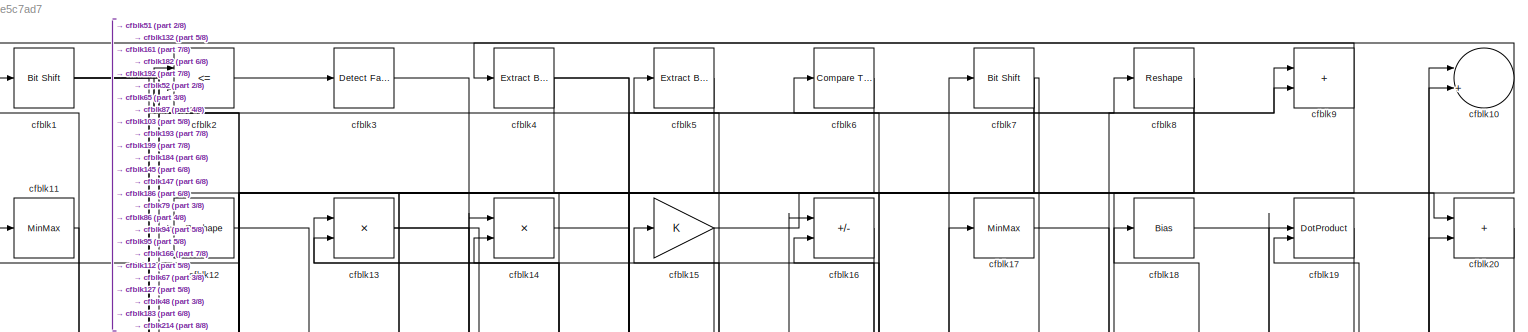
[diagram: root canvas - part 1/8, full width, top band]
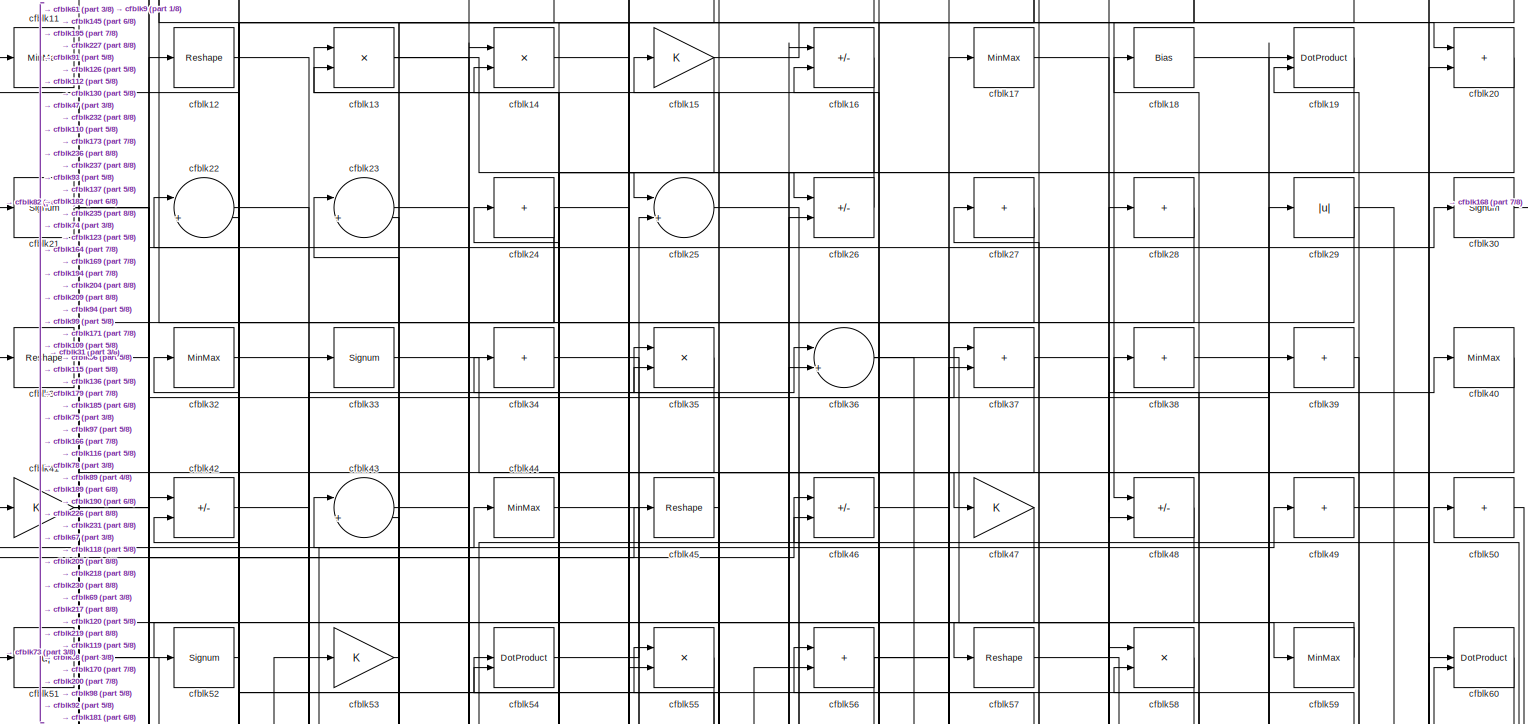
[diagram: root canvas - part 2/8, full width, top band]
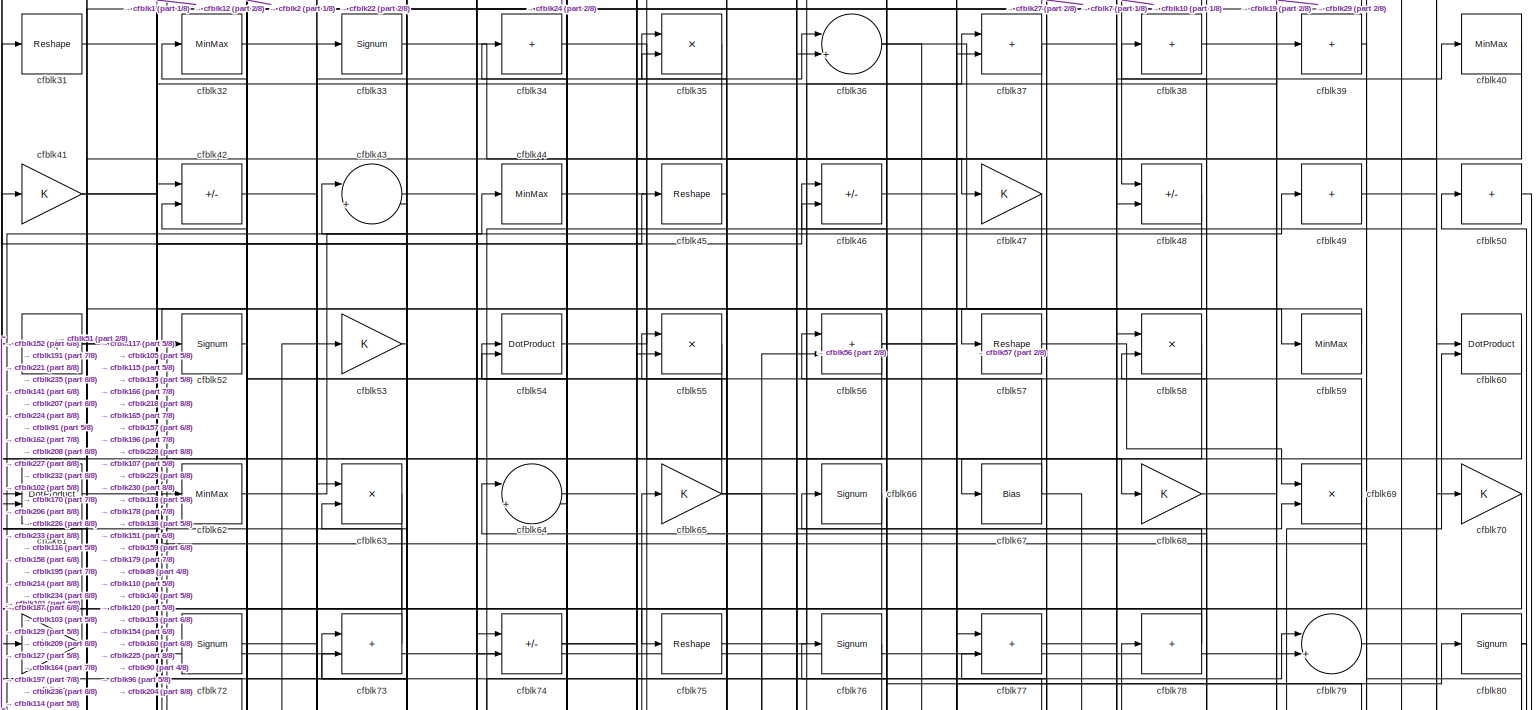
[diagram: root canvas - part 3/8, full width, top band]
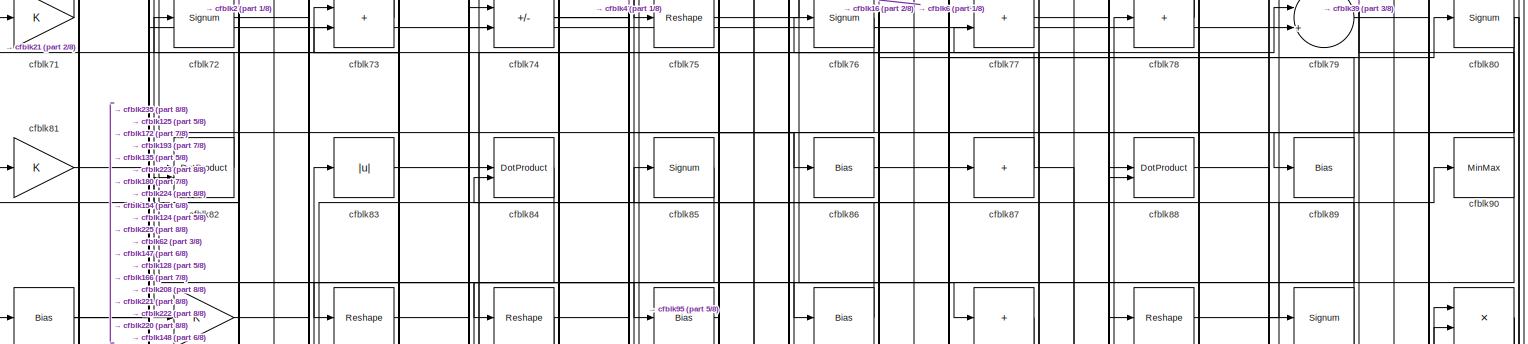
[diagram: root canvas - part 4/8, full width, middle band]
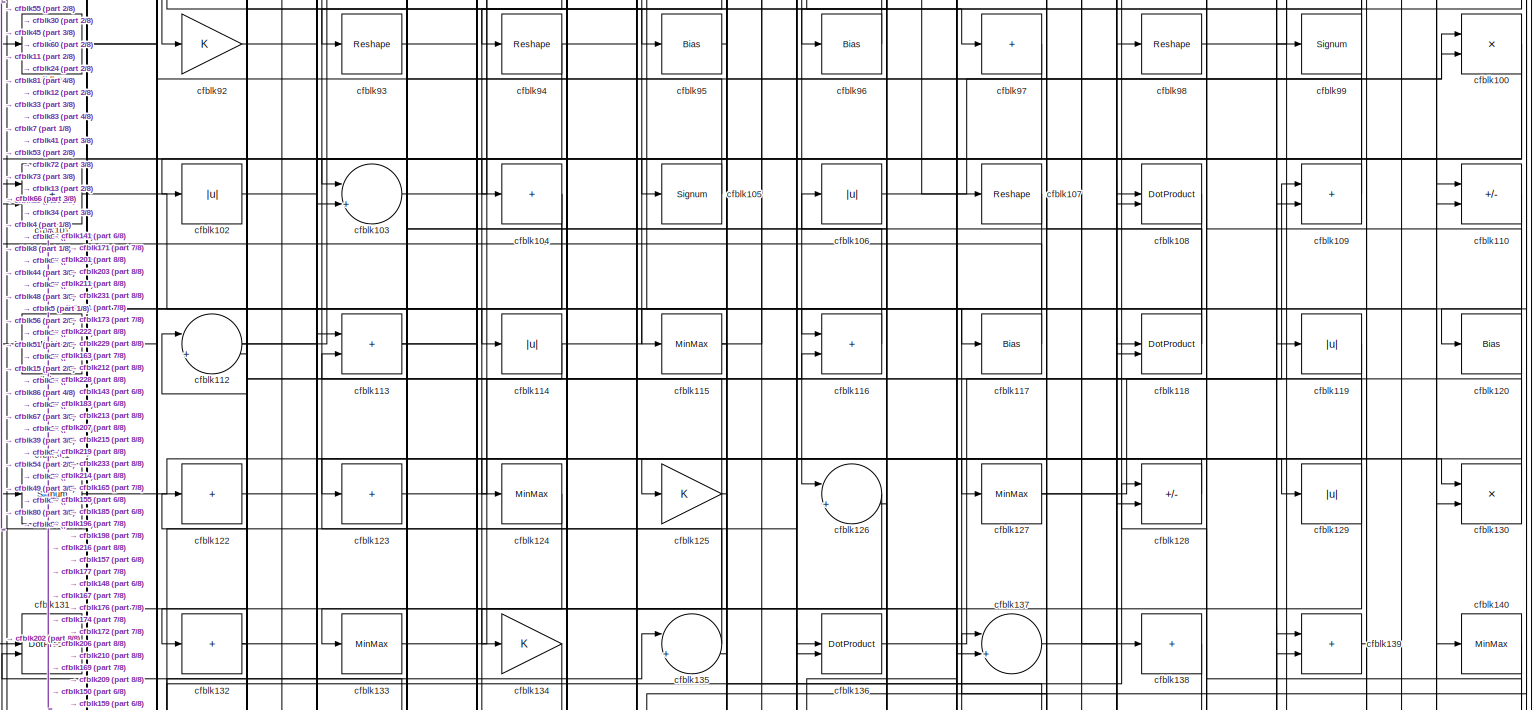
[diagram: root canvas - part 5/8, full width, middle band]
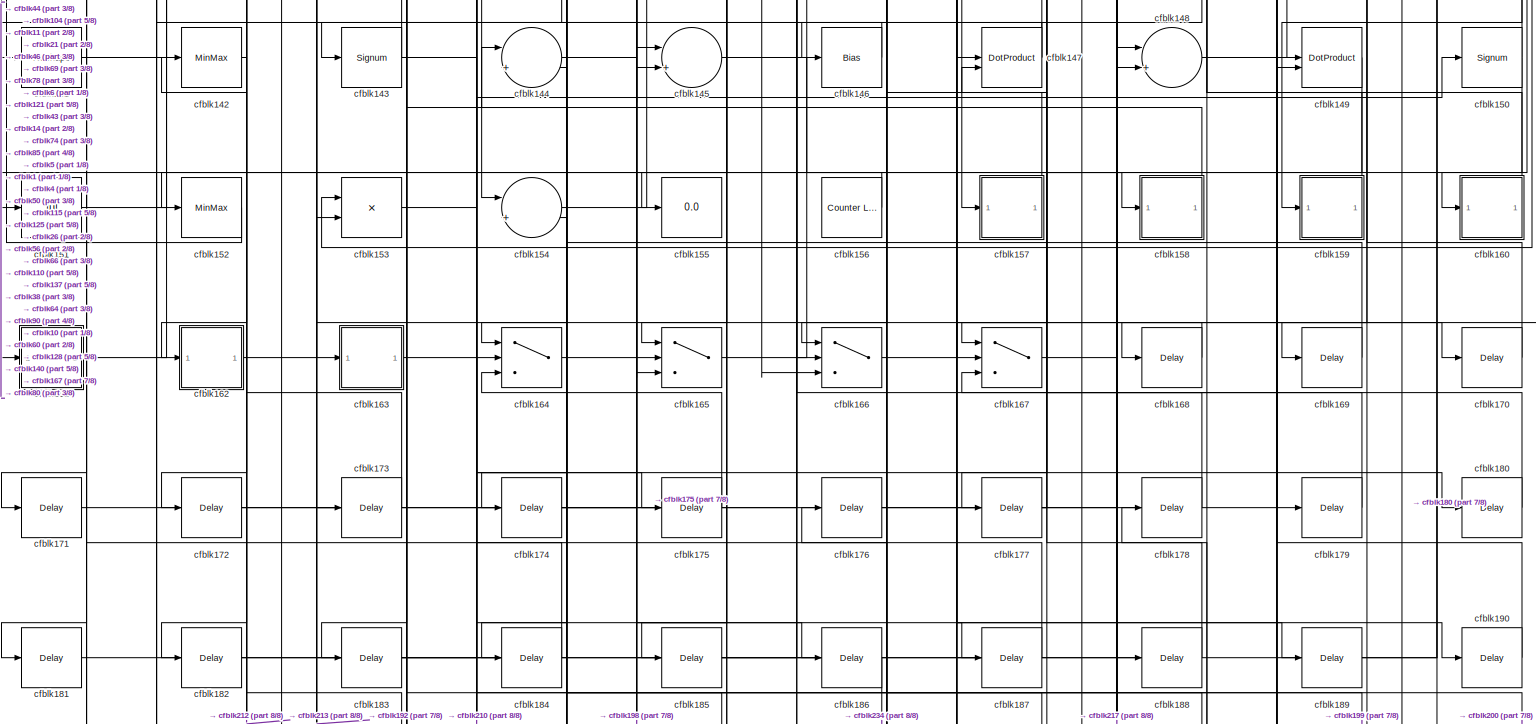
[diagram: root canvas - part 6/8, full width, bottom band]
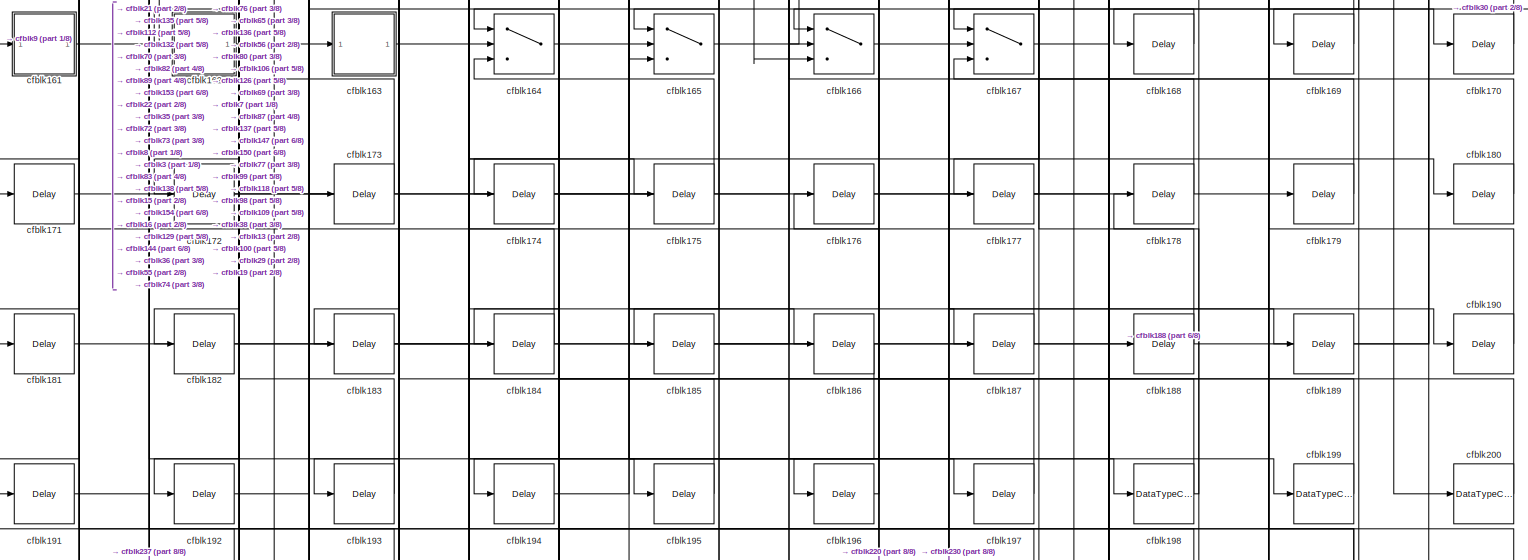
[diagram: root canvas - part 7/8, full width, bottom band]
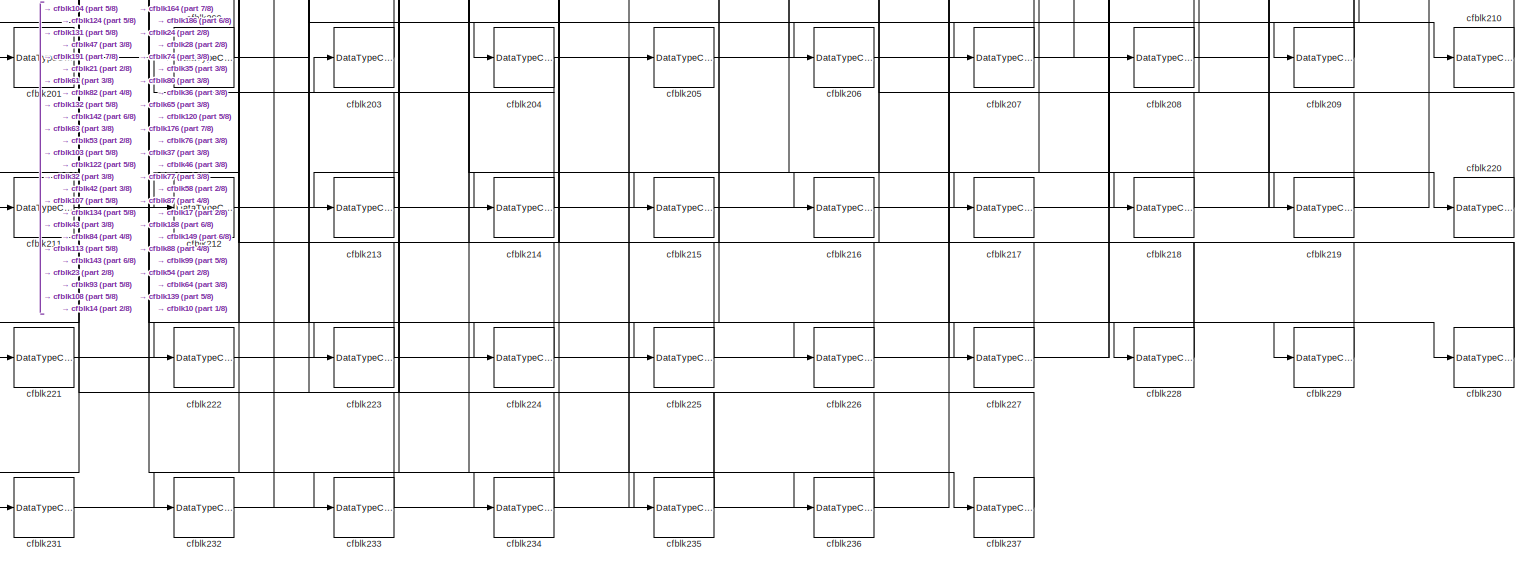
[diagram: root canvas - part 8/8, full width, bottom band]
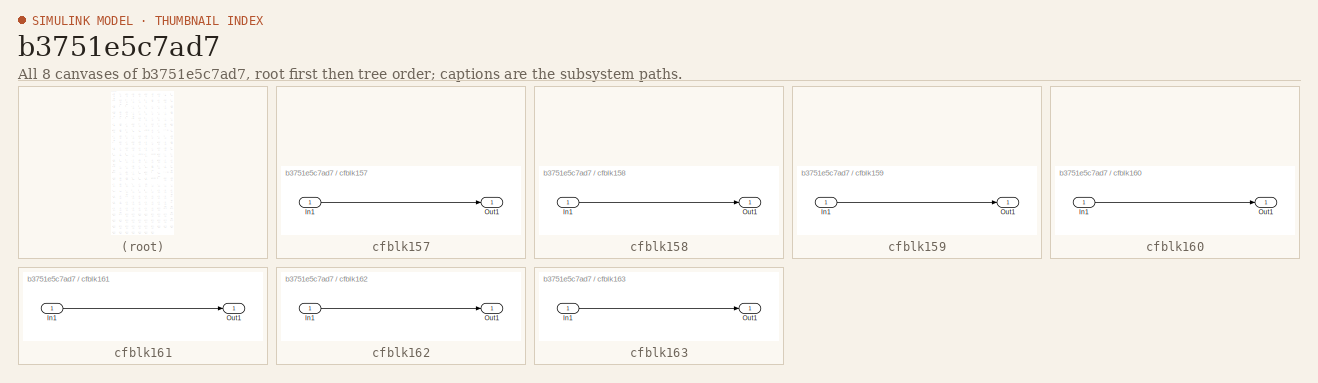
[diagram: thumbnail index - all 8 canvases of the model, root first then tree order]
MODEL slx_b3751e5c7ad7
KIND model
CONFIG AbsTol = auto
CONFIG EnableMultiTasking = off
CONFIG FixedStep = auto
CONFIG MaxStep = auto
CONFIG MinStep = auto
CONFIG RelTol = 1e-3
CONFIG SampleTimeConstraint = Unconstrained
CONFIG SolverName = VariableStepAuto
CONFIG StartTime = 0.0
CONFIG StopTime = 10.0
BLOCK [Reference] cfblk1  REF=hdlsllib/Logic and Bit
Operations/Bit Shift
  SourceBlock = hdlsllib/Logic and Bit\nOperations/Bit Shift
  SourceType = Bit Shift
BLOCK [Sum] cfblk10
  Inputs = |++
BLOCK [Product] cfblk100
  Inputs = */
  RndMeth = Zero
  SaturateOnIntegerOverflow = on
BLOCK [Sum] cfblk101
  IconShape = rectangular
BLOCK [Abs] cfblk102
  SaturateOnIntegerOverflow = off
BLOCK [Sum] cfblk103
  Inputs = |++
BLOCK [Sum] cfblk104
  IconShape = rectangular
  Inputs = +
BLOCK [Signum] cfblk105
BLOCK [Abs] cfblk106
  SaturateOnIntegerOverflow = off
BLOCK [Reshape] cfblk107
BLOCK [DotProduct] cfblk108
  OutDataTypeStr = Inherit: Inherit via internal rule
BLOCK [Sum] cfblk109
  IconShape = rectangular
BLOCK [MinMax] cfblk11
BLOCK [Sum] cfblk110
  IconShape = rectangular
  Inputs = +-
BLOCK [MinMax] cfblk111
BLOCK [Sum] cfblk112
  Inputs = |++
BLOCK [Sum] cfblk113
  IconShape = rectangular
BLOCK [Abs] cfblk114
  SaturateOnIntegerOverflow = off
BLOCK [MinMax] cfblk115
BLOCK [Sum] cfblk116
  IconShape = rectangular
BLOCK [Bias] cfblk117
  Bias = 0.0
  SaturateOnIntegerOverflow = off
BLOCK [DotProduct] cfblk118
  OutDataTypeStr = Inherit: Inherit via internal rule
BLOCK [Abs] cfblk119
  SaturateOnIntegerOverflow = off
BLOCK [Reshape] cfblk12
BLOCK [Bias] cfblk120
  Bias = 0.0
  SaturateOnIntegerOverflow = off
BLOCK [Signum] cfblk121
BLOCK [Sum] cfblk122
  IconShape = rectangular
  Inputs = +
BLOCK [Sum] cfblk123
  IconShape = rectangular
  Inputs = +
BLOCK [MinMax] cfblk124
BLOCK [Gain] cfblk125
BLOCK [Sum] cfblk126
  Inputs = |++
BLOCK [MinMax] cfblk127
BLOCK [Sum] cfblk128
  IconShape = rectangular
  Inputs = +-
BLOCK [Abs] cfblk129
  SaturateOnIntegerOverflow = off
BLOCK [Product] cfblk13
  Inputs = */
  RndMeth = Zero
  SaturateOnIntegerOverflow = on
BLOCK [Product] cfblk130
  Inputs = */
  RndMeth = Zero
  SaturateOnIntegerOverflow = on
BLOCK [DotProduct] cfblk131
  OutDataTypeStr = Inherit: Inherit via internal rule
BLOCK [Sum] cfblk132
  IconShape = rectangular
  Inputs = +
BLOCK [MinMax] cfblk133
BLOCK [Gain] cfblk134
BLOCK [Sum] cfblk135
  Inputs = |++
BLOCK [DotProduct] cfblk136
  OutDataTypeStr = Inherit: Inherit via internal rule
BLOCK [Sum] cfblk137
  Inputs = |++
BLOCK [Sum] cfblk138
  IconShape = rectangular
  Inputs = +
BLOCK [Sum] cfblk139
  IconShape = rectangular
BLOCK [Product] cfblk14
  Inputs = */
  RndMeth = Zero
  SaturateOnIntegerOverflow = on
BLOCK [MinMax] cfblk140
BLOCK [Reshape] cfblk141
BLOCK [MinMax] cfblk142
BLOCK [Signum] cfblk143
BLOCK [Sum] cfblk144
  Inputs = |++
BLOCK [Sum] cfblk145
  Inputs = |++
BLOCK [Bias] cfblk146
  Bias = 0.0
  SaturateOnIntegerOverflow = off
BLOCK [DotProduct] cfblk147
  OutDataTypeStr = Inherit: Inherit via internal rule
BLOCK [Sum] cfblk148
  Inputs = |++
BLOCK [DotProduct] cfblk149
  OutDataTypeStr = Inherit: Inherit via internal rule
BLOCK [Gain] cfblk15
BLOCK [Signum] cfblk150
BLOCK [Abs] cfblk151
  SaturateOnIntegerOverflow = off
BLOCK [MinMax] cfblk152
BLOCK [Product] cfblk153
  Inputs = */
  RndMeth = Zero
  SaturateOnIntegerOverflow = on
BLOCK [Sum] cfblk154
  Inputs = |++
BLOCK [Display] cfblk155
  Decimation = 1
BLOCK [Reference] cfblk156  REF=hdlsllib/Sources/Counter
Limited
  SourceBlock = hdlsllib/Sources/Counter\nLimited
  SourceType = Counter Limited
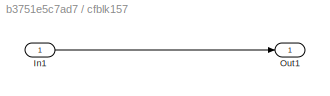
BLOCK [SubSystem] cfblk157
  LibrarySourceBlock = hdlsllib/Ports &\nSubsystems/Subsystem
BLOCK [Inport] cfblk157/In1
BLOCK [Outport] cfblk157/Out1
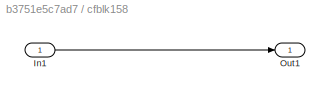
BLOCK [SubSystem] cfblk158
  LibrarySourceBlock = hdlsllib/Ports &\nSubsystems/Subsystem
BLOCK [Inport] cfblk158/In1
BLOCK [Outport] cfblk158/Out1
BLOCK [SubSystem] cfblk159
  LibrarySourceBlock = hdlsllib/Ports &\nSubsystems/Subsystem
BLOCK [Inport] cfblk159/In1
BLOCK [Outport] cfblk159/Out1
BLOCK [Sum] cfblk16
  IconShape = rectangular
  Inputs = +-
BLOCK [SubSystem] cfblk160
  LibrarySourceBlock = hdlsllib/Ports &\nSubsystems/Subsystem
BLOCK [Inport] cfblk160/In1
BLOCK [Outport] cfblk160/Out1
BLOCK [SubSystem] cfblk161
  LibrarySourceBlock = hdlsllib/Ports &\nSubsystems/Subsystem
BLOCK [Inport] cfblk161/In1
BLOCK [Outport] cfblk161/Out1
BLOCK [SubSystem] cfblk162
  LibrarySourceBlock = hdlsllib/Ports &\nSubsystems/Subsystem
BLOCK [Inport] cfblk162/In1
BLOCK [Outport] cfblk162/Out1
BLOCK [SubSystem] cfblk163
  LibrarySourceBlock = hdlsllib/Ports &\nSubsystems/Subsystem
BLOCK [Inport] cfblk163/In1
BLOCK [Outport] cfblk163/Out1
BLOCK [Switch] cfblk164
  InputSameDT = off
  SaturateOnIntegerOverflow = off
BLOCK [Switch] cfblk165
  InputSameDT = off
  SaturateOnIntegerOverflow = off
BLOCK [Switch] cfblk166
  InputSameDT = off
  SaturateOnIntegerOverflow = off
BLOCK [Switch] cfblk167
  InputSameDT = off
  SaturateOnIntegerOverflow = off
BLOCK [Delay] cfblk168
  InputPortMap = u0
  SampleTime = 1
BLOCK [Delay] cfblk169
  InputPortMap = u0
  SampleTime = 1
BLOCK [MinMax] cfblk17
BLOCK [Delay] cfblk170
  InputPortMap = u0
  SampleTime = 1
BLOCK [Delay] cfblk171
  InputPortMap = u0
  SampleTime = 1
BLOCK [Delay] cfblk172
  InputPortMap = u0
  SampleTime = 1
BLOCK [Delay] cfblk173
  InputPortMap = u0
  SampleTime = 1
BLOCK [Delay] cfblk174
  InputPortMap = u0
  SampleTime = 1
BLOCK [Delay] cfblk175
  InputPortMap = u0
  SampleTime = 1
BLOCK [Delay] cfblk176
  InputPortMap = u0
  SampleTime = 1
BLOCK [Delay] cfblk177
  InputPortMap = u0
  SampleTime = 1
BLOCK [Delay] cfblk178
  InputPortMap = u0
  SampleTime = 1
BLOCK [Delay] cfblk179
  InputPortMap = u0
  SampleTime = 1
BLOCK [Bias] cfblk18
  Bias = 0.0
  SaturateOnIntegerOverflow = off
BLOCK [Delay] cfblk180
  InputPortMap = u0
  SampleTime = 1
BLOCK [Delay] cfblk181
  InputPortMap = u0
  SampleTime = 1
BLOCK [Delay] cfblk182
  InputPortMap = u0
  SampleTime = 1
BLOCK [Delay] cfblk183
  InputPortMap = u0
  SampleTime = 1
BLOCK [Delay] cfblk184
  InputPortMap = u0
  SampleTime = 1
BLOCK [Delay] cfblk185
  InputPortMap = u0
  SampleTime = 1
BLOCK [Delay] cfblk186
  InputPortMap = u0
  SampleTime = 1
BLOCK [Delay] cfblk187
  InputPortMap = u0
  SampleTime = 1
BLOCK [Delay] cfblk188
  InputPortMap = u0
  SampleTime = 1
BLOCK [Delay] cfblk189
  InputPortMap = u0
  SampleTime = 1
BLOCK [DotProduct] cfblk19
  OutDataTypeStr = Inherit: Inherit via internal rule
BLOCK [Delay] cfblk190
  InputPortMap = u0
  SampleTime = 1
BLOCK [Delay] cfblk191
  InputPortMap = u0
  SampleTime = 1
BLOCK [Delay] cfblk192
  InputPortMap = u0
  SampleTime = 1
BLOCK [Delay] cfblk193
  InputPortMap = u0
  SampleTime = 1
BLOCK [Delay] cfblk194
  InputPortMap = u0
  SampleTime = 1
BLOCK [Delay] cfblk195
  InputPortMap = u0
  SampleTime = 1
BLOCK [Delay] cfblk196
  InputPortMap = u0
  SampleTime = 1
BLOCK [Delay] cfblk197
  InputPortMap = u0
  SampleTime = 1
BLOCK [DataTypeConversion] cfblk198
  RndMeth = Floor
  SaturateOnIntegerOverflow = off
BLOCK [DataTypeConversion] cfblk199
  OutDataTypeStr = uint8
  RndMeth = Floor
  SaturateOnIntegerOverflow = off
BLOCK [RelationalOperator] cfblk2
  InputSameDT = off
  Operator = <=
  OutDataTypeStr = boolean
BLOCK [Sum] cfblk20
  IconShape = rectangular
BLOCK [DataTypeConversion] cfblk200
  OutDataTypeStr = uint8
  RndMeth = Floor
  SaturateOnIntegerOverflow = off
BLOCK [DataTypeConversion] cfblk201
  OutDataTypeStr = uint8
  RndMeth = Floor
  SaturateOnIntegerOverflow = off
BLOCK [DataTypeConversion] cfblk202
  OutDataTypeStr = uint8
  RndMeth = Floor
  SaturateOnIntegerOverflow = off
BLOCK [DataTypeConversion] cfblk203
  OutDataTypeStr = uint8
  RndMeth = Floor
  SaturateOnIntegerOverflow = off
BLOCK [DataTypeConversion] cfblk204
  RndMeth = Floor
  SaturateOnIntegerOverflow = off
BLOCK [DataTypeConversion] cfblk205
  OutDataTypeStr = uint8
  RndMeth = Floor
  SaturateOnIntegerOverflow = off
BLOCK [DataTypeConversion] cfblk206
  OutDataTypeStr = uint8
  RndMeth = Floor
  SaturateOnIntegerOverflow = off
BLOCK [DataTypeConversion] cfblk207
  OutDataTypeStr = uint8
  RndMeth = Floor
  SaturateOnIntegerOverflow = off
BLOCK [DataTypeConversion] cfblk208
  OutDataTypeStr = uint8
  RndMeth = Floor
  SaturateOnIntegerOverflow = off
BLOCK [DataTypeConversion] cfblk209
  RndMeth = Floor
  SaturateOnIntegerOverflow = off
BLOCK [Signum] cfblk21
BLOCK [DataTypeConversion] cfblk210
  OutDataTypeStr = uint8
  RndMeth = Floor
  SaturateOnIntegerOverflow = off
BLOCK [DataTypeConversion] cfblk211
  OutDataTypeStr = uint8
  RndMeth = Floor
  SaturateOnIntegerOverflow = off
BLOCK [DataTypeConversion] cfblk212
  OutDataTypeStr = uint8
  RndMeth = Floor
  SaturateOnIntegerOverflow = off
BLOCK [DataTypeConversion] cfblk213
  OutDataTypeStr = uint8
  RndMeth = Floor
  SaturateOnIntegerOverflow = off
BLOCK [DataTypeConversion] cfblk214
  RndMeth = Floor
  SaturateOnIntegerOverflow = off
BLOCK [DataTypeConversion] cfblk215
  OutDataTypeStr = uint8
  RndMeth = Floor
  SaturateOnIntegerOverflow = off
BLOCK [DataTypeConversion] cfblk216
  OutDataTypeStr = uint8
  RndMeth = Floor
  SaturateOnIntegerOverflow = off
BLOCK [DataTypeConversion] cfblk217
  RndMeth = Floor
  SaturateOnIntegerOverflow = off
BLOCK [DataTypeConversion] cfblk218
  OutDataTypeStr = uint8
  RndMeth = Floor
  SaturateOnIntegerOverflow = off
BLOCK [DataTypeConversion] cfblk219
  OutDataTypeStr = uint8
  RndMeth = Floor
  SaturateOnIntegerOverflow = off
BLOCK [Sum] cfblk22
  Inputs = |++
BLOCK [DataTypeConversion] cfblk220
  OutDataTypeStr = uint8
  RndMeth = Floor
  SaturateOnIntegerOverflow = off
BLOCK [DataTypeConversion] cfblk221
  OutDataTypeStr = uint8
  RndMeth = Floor
  SaturateOnIntegerOverflow = off
BLOCK [DataTypeConversion] cfblk222
  OutDataTypeStr = uint8
  RndMeth = Floor
  SaturateOnIntegerOverflow = off
BLOCK [DataTypeConversion] cfblk223
  OutDataTypeStr = uint8
  RndMeth = Floor
  SaturateOnIntegerOverflow = off
BLOCK [DataTypeConversion] cfblk224
  OutDataTypeStr = uint8
  RndMeth = Floor
  SaturateOnIntegerOverflow = off
BLOCK [DataTypeConversion] cfblk225
  OutDataTypeStr = uint8
  RndMeth = Floor
  SaturateOnIntegerOverflow = off
BLOCK [DataTypeConversion] cfblk226
  RndMeth = Floor
  SaturateOnIntegerOverflow = off
BLOCK [DataTypeConversion] cfblk227
  OutDataTypeStr = uint8
  RndMeth = Floor
  SaturateOnIntegerOverflow = off
BLOCK [DataTypeConversion] cfblk228
  RndMeth = Floor
  SaturateOnIntegerOverflow = off
BLOCK [DataTypeConversion] cfblk229
  OutDataTypeStr = uint8
  RndMeth = Floor
  SaturateOnIntegerOverflow = off
BLOCK [Sum] cfblk23
  Inputs = |++
BLOCK [DataTypeConversion] cfblk230
  RndMeth = Floor
  SaturateOnIntegerOverflow = off
BLOCK [DataTypeConversion] cfblk231
  OutDataTypeStr = uint8
  RndMeth = Floor
  SaturateOnIntegerOverflow = off
BLOCK [DataTypeConversion] cfblk232
  RndMeth = Floor
  SaturateOnIntegerOverflow = off
BLOCK [DataTypeConversion] cfblk233
  OutDataTypeStr = uint8
  RndMeth = Floor
  SaturateOnIntegerOverflow = off
BLOCK [DataTypeConversion] cfblk234
  OutDataTypeStr = uint8
  RndMeth = Floor
  SaturateOnIntegerOverflow = off
BLOCK [DataTypeConversion] cfblk235
  RndMeth = Floor
  SaturateOnIntegerOverflow = off
BLOCK [DataTypeConversion] cfblk236
  OutDataTypeStr = uint8
  RndMeth = Floor
  SaturateOnIntegerOverflow = off
BLOCK [DataTypeConversion] cfblk237
  OutDataTypeStr = uint8
  RndMeth = Floor
  SaturateOnIntegerOverflow = off
BLOCK [Sum] cfblk24
  IconShape = rectangular
  Inputs = +
BLOCK [Sum] cfblk25
  Inputs = |++
BLOCK [Sum] cfblk26
  IconShape = rectangular
  Inputs = +-
BLOCK [Sum] cfblk27
  IconShape = rectangular
  Inputs = +
BLOCK [Sum] cfblk28
  IconShape = rectangular
  Inputs = +
BLOCK [Abs] cfblk29
  SaturateOnIntegerOverflow = off
BLOCK [Reference] cfblk3  REF=hdlsllib/Logic and Bit
Operations/Detect Fall
Negative
  SourceBlock = hdlsllib/Logic and Bit\nOperations/Detect Fall\nNegative
  SourceType = Detect Fall Negative
BLOCK [Signum] cfblk30
BLOCK [Reshape] cfblk31
BLOCK [MinMax] cfblk32
BLOCK [Signum] cfblk33
BLOCK [Sum] cfblk34
  IconShape = rectangular
  Inputs = +
BLOCK [Product] cfblk35
  Inputs = */
  RndMeth = Zero
  SaturateOnIntegerOverflow = on
BLOCK [Sum] cfblk36
  Inputs = |++
BLOCK [Sum] cfblk37
  IconShape = rectangular
BLOCK [Sum] cfblk38
  IconShape = rectangular
  Inputs = +
BLOCK [Sum] cfblk39
  IconShape = rectangular
  Inputs = +
BLOCK [Reference] cfblk4  REF=simulink/Logic and Bit
Operations/Extract Bits
  LibrarySourceBlock = hdlsllib/Logic and Bit\nOperations/Extract Bits
  SourceBlock = simulink/Logic and Bit\nOperations/Extract Bits
  SourceType = Extract Bits
BLOCK [MinMax] cfblk40
BLOCK [Gain] cfblk41
BLOCK [Sum] cfblk42
  IconShape = rectangular
  Inputs = +-
BLOCK [Sum] cfblk43
  Inputs = |++
BLOCK [MinMax] cfblk44
BLOCK [Reshape] cfblk45
BLOCK [Sum] cfblk46
  IconShape = rectangular
  Inputs = +-
BLOCK [Gain] cfblk47
BLOCK [Sum] cfblk48
  IconShape = rectangular
  Inputs = +-
BLOCK [Sum] cfblk49
  IconShape = rectangular
  Inputs = +
BLOCK [Reference] cfblk5  REF=simulink/Logic and Bit
Operations/Extract Bits
  LibrarySourceBlock = hdlsllib/Logic and Bit\nOperations/Extract Bits
  SourceBlock = simulink/Logic and Bit\nOperations/Extract Bits
  SourceType = Extract Bits
BLOCK [Sum] cfblk50
  IconShape = rectangular
  Inputs = +
BLOCK [Abs] cfblk51
  SaturateOnIntegerOverflow = off
BLOCK [Signum] cfblk52
BLOCK [Gain] cfblk53
BLOCK [DotProduct] cfblk54
  OutDataTypeStr = Inherit: Inherit via internal rule
BLOCK [Product] cfblk55
  Inputs = */
  RndMeth = Zero
  SaturateOnIntegerOverflow = on
BLOCK [Sum] cfblk56
  IconShape = rectangular
BLOCK [Reshape] cfblk57
BLOCK [Product] cfblk58
  Inputs = */
  RndMeth = Zero
  SaturateOnIntegerOverflow = on
BLOCK [MinMax] cfblk59
BLOCK [Reference] cfblk6  REF=hdlsllib/Logic and Bit
Operations/Compare
To Zero
  SourceBlock = hdlsllib/Logic and Bit\nOperations/Compare\nTo Zero
  SourceType = Compare To Zero
BLOCK [DotProduct] cfblk60
  OutDataTypeStr = Inherit: Inherit via internal rule
BLOCK [DotProduct] cfblk61
  OutDataTypeStr = Inherit: Inherit via internal rule
BLOCK [MinMax] cfblk62
BLOCK [Product] cfblk63
  Inputs = */
  RndMeth = Zero
  SaturateOnIntegerOverflow = on
BLOCK [Sum] cfblk64
  Inputs = |++
BLOCK [Gain] cfblk65
BLOCK [Signum] cfblk66
BLOCK [Bias] cfblk67
  Bias = 0.0
  SaturateOnIntegerOverflow = off
BLOCK [Gain] cfblk68
BLOCK [Product] cfblk69
  Inputs = */
  RndMeth = Zero
  SaturateOnIntegerOverflow = on
BLOCK [Reference] cfblk7  REF=hdlsllib/Logic and Bit
Operations/Bit Shift
  SourceBlock = hdlsllib/Logic and Bit\nOperations/Bit Shift
  SourceType = Bit Shift
BLOCK [Gain] cfblk70
BLOCK [Gain] cfblk71
BLOCK [Signum] cfblk72
BLOCK [Sum] cfblk73
  IconShape = rectangular
BLOCK [Sum] cfblk74
  IconShape = rectangular
  Inputs = +-
BLOCK [Reshape] cfblk75
BLOCK [Signum] cfblk76
BLOCK [Sum] cfblk77
  IconShape = rectangular
BLOCK [Sum] cfblk78
  IconShape = rectangular
  Inputs = +
BLOCK [Sum] cfblk79
  Inputs = |++
BLOCK [Reshape] cfblk8
BLOCK [Signum] cfblk80
BLOCK [Gain] cfblk81
BLOCK [DotProduct] cfblk82
  OutDataTypeStr = Inherit: Inherit via internal rule
BLOCK [Abs] cfblk83
  SaturateOnIntegerOverflow = off
BLOCK [DotProduct] cfblk84
  OutDataTypeStr = Inherit: Inherit via internal rule
BLOCK [Signum] cfblk85
BLOCK [Bias] cfblk86
  Bias = 0.0
  SaturateOnIntegerOverflow = off
BLOCK [Sum] cfblk87
  IconShape = rectangular
  Inputs = +
BLOCK [DotProduct] cfblk88
  OutDataTypeStr = Inherit: Inherit via internal rule
BLOCK [Bias] cfblk89
  Bias = 0.0
  SaturateOnIntegerOverflow = off
BLOCK [Sum] cfblk9
  IconShape = rectangular
BLOCK [MinMax] cfblk90
BLOCK [Bias] cfblk91
  Bias = 0.0
  SaturateOnIntegerOverflow = off
BLOCK [Gain] cfblk92
BLOCK [Reshape] cfblk93
BLOCK [Reshape] cfblk94
BLOCK [Bias] cfblk95
  Bias = 0.0
  SaturateOnIntegerOverflow = off
BLOCK [Bias] cfblk96
  Bias = 0.0
  SaturateOnIntegerOverflow = off
BLOCK [Sum] cfblk97
  IconShape = rectangular
  Inputs = +
BLOCK [Reshape] cfblk98
BLOCK [Signum] cfblk99
NET cfblk100:1 -> cfblk133:1, cfblk169:1, cfblk171:1
LINE cfblk101:1 -> cfblk130:2
LINE cfblk102:1 -> cfblk33:1
LINE cfblk103:1 -> cfblk79:1
NET cfblk104:1 -> cfblk141:1, cfblk231:1
LINE cfblk105:1 -> cfblk73:1
LINE cfblk106:1 -> cfblk100:1
LINE cfblk107:1 -> cfblk213:1
LINE cfblk108:1 -> cfblk214:1
LINE cfblk109:1 -> cfblk55:1
NET cfblk10:1 -> cfblk48:1, cfblk4:1
LINE cfblk110:1 -> cfblk157:1
LINE cfblk111:1 -> cfblk100:2
NET cfblk112:1 -> cfblk129:1, cfblk7:1
NET cfblk113:1 -> cfblk215:1, cfblk219:1
NET cfblk114:1 -> cfblk113:2, cfblk65:1
NET cfblk115:1 -> cfblk155:1, cfblk56:2
LINE cfblk116:1 -> cfblk72:1
LINE cfblk117:1 -> cfblk101:1
NET cfblk118:1 -> cfblk27:1, cfblk41:1
LINE cfblk119:1 -> cfblk123:1
LINE cfblk11:1 -> cfblk181:1
NET cfblk120:1 -> cfblk18:1, cfblk216:1
LINE cfblk121:1 -> cfblk130:1
LINE cfblk122:1 -> cfblk228:1
LINE cfblk123:1 -> cfblk20:2
LINE cfblk124:1 -> cfblk211:1
NET cfblk125:1 -> cfblk183:1, cfblk185:1, cfblk81:1
LINE cfblk126:1 -> cfblk134:1
NET cfblk127:1 -> cfblk39:1, cfblk9:2
LINE cfblk128:1 -> cfblk125:1
NET cfblk129:1 -> cfblk165:3, cfblk34:1
LINE cfblk12:1 -> cfblk110:2
LINE cfblk130:1 -> cfblk11:1
LINE cfblk131:1 -> cfblk201:1
NET cfblk132:1 -> cfblk163:1, cfblk222:1
LINE cfblk133:1 -> cfblk116:2
LINE cfblk134:1 -> cfblk233:1
LINE cfblk135:1 -> cfblk83:1
LINE cfblk136:1 -> cfblk109:1
LINE cfblk137:1 -> cfblk148:2
LINE cfblk138:1 -> cfblk174:1
LINE cfblk139:1 -> cfblk209:1
NET cfblk13:1 -> cfblk137:2, cfblk25:1
LINE cfblk140:1 -> cfblk159:1
NET cfblk141:1 -> cfblk46:1, cfblk69:2
LINE cfblk142:1 -> cfblk212:1
NET cfblk143:1 -> cfblk121:1, cfblk210:1
LINE cfblk144:1 -> cfblk198:1
LINE cfblk145:1 -> cfblk158:1
LINE cfblk146:1 -> cfblk143:1
NET cfblk147:1 -> cfblk146:1, cfblk85:1
LINE cfblk148:1 -> cfblk90:1
LINE cfblk149:1 -> cfblk151:1
LINE cfblk14:1 -> cfblk26:1
NET cfblk150:1 -> cfblk128:1, cfblk167:1
LINE cfblk151:1 -> cfblk78:1
LINE cfblk152:1 -> cfblk44:1
LINE cfblk153:1 -> cfblk150:1
LINE cfblk154:1 -> cfblk50:1
LINE cfblk156:1 -> cfblk152:1
LINE cfblk157/In1:1 -> cfblk157/Out1:1
LINE cfblk157:1 -> cfblk66:1
LINE cfblk158/In1:1 -> cfblk158/Out1:1
LINE cfblk158:1 -> cfblk43:1
LINE cfblk159/In1:1 -> cfblk159/Out1:1
LINE cfblk159:1 -> cfblk64:1
NET cfblk15:1 -> cfblk194:1, cfblk20:1
LINE cfblk160/In1:1 -> cfblk160/Out1:1
LINE cfblk160:1 -> cfblk38:1
LINE cfblk161/In1:1 -> cfblk161/Out1:1
LINE cfblk161:1 -> cfblk135:1
LINE cfblk162/In1:1 -> cfblk162/Out1:1
LINE cfblk162:1 -> cfblk35:1
LINE cfblk163/In1:1 -> cfblk163/Out1:1
LINE cfblk163:1 -> cfblk175:1
LINE cfblk164:1 -> cfblk36:1
LINE cfblk165:1 -> cfblk80:1
LINE cfblk166:1 -> cfblk87:1
LINE cfblk167:1 -> cfblk98:1
LINE cfblk168:1 -> cfblk167:2
LINE cfblk169:1 -> cfblk13:2
LINE cfblk16:1 -> cfblk164:1
LINE cfblk170:1 -> cfblk19:2
LINE cfblk171:1 -> cfblk55:2
LINE cfblk172:1 -> cfblk109:2
LINE cfblk173:1 -> cfblk112:1
LINE cfblk174:1 -> cfblk136:1
LINE cfblk175:1 -> cfblk154:2
LINE cfblk176:1 -> cfblk118:1
LINE cfblk177:1 -> cfblk137:1
LINE cfblk178:1 -> cfblk77:2
LINE cfblk179:1 -> cfblk16:1
LINE cfblk17:1 -> cfblk230:1
LINE cfblk180:1 -> cfblk147:2
LINE cfblk181:1 -> cfblk148:1
LINE cfblk182:1 -> cfblk14:1
LINE cfblk183:1 -> cfblk10:1
LINE cfblk184:1 -> cfblk1:1
LINE cfblk185:1 -> cfblk26:2
LINE cfblk186:1 -> cfblk234:1
LINE cfblk187:1 -> cfblk74:1
LINE cfblk188:1 -> cfblk167:3
LINE cfblk189:1 -> cfblk60:1
LINE cfblk18:1 -> cfblk119:1
LINE cfblk190:1 -> cfblk149:1
LINE cfblk191:1 -> cfblk237:1
LINE cfblk192:1 -> cfblk153:2
LINE cfblk193:1 -> cfblk82:2
LINE cfblk194:1 -> cfblk165:2
LINE cfblk195:1 -> cfblk73:2
LINE cfblk196:1 -> cfblk126:2
LINE cfblk197:1 -> cfblk164:2
NET cfblk198:1 -> cfblk106:1, cfblk178:1
LINE cfblk199:1 -> cfblk144:1
LINE cfblk19:1 -> cfblk136:2
NET cfblk1:1 -> cfblk145:1, cfblk147:1, cfblk79:2
LINE cfblk200:1 -> cfblk144:2
LINE cfblk201:1 -> cfblk113:1
LINE cfblk202:1 -> cfblk131:1
LINE cfblk203:1 -> cfblk131:2
NET cfblk204:1 -> cfblk14:2, cfblk203:1, cfblk36:2
LINE cfblk205:1 -> cfblk28:1
LINE cfblk206:1 -> cfblk99:1
LINE cfblk207:1 -> cfblk42:1
LINE cfblk208:1 -> cfblk42:2
NET cfblk209:1 -> cfblk54:2, cfblk64:2
LINE cfblk20:1 -> cfblk94:1
LINE cfblk210:1 -> cfblk139:1
LINE cfblk211:1 -> cfblk139:2
LINE cfblk212:1 -> cfblk103:2
LINE cfblk213:1 -> cfblk142:1
NET cfblk214:1 -> cfblk10:2, cfblk43:2
LINE cfblk215:1 -> cfblk108:1
LINE cfblk216:1 -> cfblk108:2
NET cfblk217:1 -> cfblk149:2, cfblk188:1
LINE cfblk218:1 -> cfblk58:1
LINE cfblk219:1 -> cfblk58:2
NET cfblk21:1 -> cfblk145:2, cfblk195:1, cfblk227:1, cfblk59:1
LINE cfblk220:1 -> cfblk176:1
LINE cfblk221:1 -> cfblk88:1
LINE cfblk222:1 -> cfblk88:2
LINE cfblk223:1 -> cfblk202:1
LINE cfblk224:1 -> cfblk84:1
LINE cfblk225:1 -> cfblk84:2
NET cfblk226:1 -> cfblk24:1, cfblk37:2
LINE cfblk227:1 -> cfblk32:1
NET cfblk228:1 -> cfblk35:2, cfblk76:1
LINE cfblk229:1 -> cfblk122:1
LINE cfblk22:1 -> cfblk173:1
NET cfblk230:1 -> cfblk164:3, cfblk77:1
LINE cfblk231:1 -> cfblk17:1
NET cfblk232:1 -> cfblk205:1, cfblk53:1
LINE cfblk233:1 -> cfblk63:1
LINE cfblk234:1 -> cfblk63:2
NET cfblk235:1 -> cfblk61:2, cfblk82:1
LINE cfblk236:1 -> cfblk23:1
LINE cfblk237:1 -> cfblk23:2
LINE cfblk23:1 -> cfblk235:1
NET cfblk24:1 -> cfblk112:2, cfblk47:1, cfblk61:1
LINE cfblk25:1 -> cfblk97:1
LINE cfblk26:1 -> cfblk13:1
LINE cfblk27:1 -> cfblk74:2
LINE cfblk28:1 -> cfblk204:1
NET cfblk29:1 -> cfblk116:1, cfblk200:1
LINE cfblk2:1 -> cfblk3:1
LINE cfblk30:1 -> cfblk168:1
LINE cfblk31:1 -> cfblk12:1
LINE cfblk32:1 -> cfblk226:1
LINE cfblk33:1 -> cfblk70:1
LINE cfblk34:1 -> cfblk68:1
LINE cfblk35:1 -> cfblk191:1
NET cfblk36:1 -> cfblk107:1, cfblk118:2
NET cfblk37:1 -> cfblk115:1, cfblk48:2
LINE cfblk38:1 -> cfblk179:1
LINE cfblk39:1 -> cfblk89:1
LINE cfblk3:1 -> cfblk199:1
LINE cfblk40:1 -> cfblk75:1
NET cfblk41:1 -> cfblk114:1, cfblk37:1
LINE cfblk42:1 -> cfblk206:1
LINE cfblk43:1 -> cfblk187:1
LINE cfblk44:1 -> cfblk117:1
LINE cfblk45:1 -> cfblk105:1
LINE cfblk46:1 -> cfblk229:1
LINE cfblk47:1 -> cfblk221:1
LINE cfblk48:1 -> cfblk135:2
LINE cfblk49:1 -> cfblk140:1
NET cfblk4:1 -> cfblk103:1, cfblk186:1, cfblk86:1
LINE cfblk50:1 -> cfblk153:1
NET cfblk51:1 -> cfblk126:1, cfblk9:1
LINE cfblk52:1 -> cfblk22:2
LINE cfblk53:1 -> cfblk93:1
LINE cfblk54:1 -> cfblk25:2
LINE cfblk55:1 -> cfblk91:1
NET cfblk56:1 -> cfblk166:2, cfblk189:1, cfblk190:1
LINE cfblk57:1 -> cfblk69:1
LINE cfblk58:1 -> cfblk217:1
LINE cfblk59:1 -> cfblk57:1
LINE cfblk5:1 -> cfblk184:1
LINE cfblk60:1 -> cfblk92:1
LINE cfblk61:1 -> cfblk224:1
LINE cfblk62:1 -> cfblk49:1
LINE cfblk63:1 -> cfblk232:1
LINE cfblk64:1 -> cfblk127:1
NET cfblk65:1 -> cfblk166:3, cfblk218:1, cfblk2:1
LINE cfblk66:1 -> cfblk101:2
NET cfblk67:1 -> cfblk138:1, cfblk22:1
LINE cfblk68:1 -> cfblk29:1
NET cfblk69:1 -> cfblk196:1, cfblk46:2
LINE cfblk6:1 -> cfblk182:1
LINE cfblk70:1 -> cfblk162:1
LINE cfblk71:1 -> cfblk31:1
LINE cfblk72:1 -> cfblk170:1
LINE cfblk73:1 -> cfblk51:1
NET cfblk74:1 -> cfblk197:1, cfblk236:1
LINE cfblk75:1 -> cfblk19:1
LINE cfblk76:1 -> cfblk165:1
LINE cfblk77:1 -> cfblk40:1
NET cfblk78:1 -> cfblk56:1, cfblk71:1
LINE cfblk79:1 -> cfblk110:1
NET cfblk7:1 -> cfblk132:1, cfblk166:1, cfblk67:1
NET cfblk80:1 -> cfblk120:1, cfblk160:1, cfblk225:1, cfblk96:1
LINE cfblk81:1 -> cfblk95:1
LINE cfblk82:1 -> cfblk21:1
LINE cfblk83:1 -> cfblk180:1
LINE cfblk84:1 -> cfblk223:1
LINE cfblk85:1 -> cfblk154:1
NET cfblk86:1 -> cfblk128:2, cfblk6:1
NET cfblk87:1 -> cfblk208:1, cfblk2:2
LINE cfblk88:1 -> cfblk220:1
NET cfblk89:1 -> cfblk16:2, cfblk172:1
NET cfblk8:1 -> cfblk192:1, cfblk193:1
NET cfblk90:1 -> cfblk124:1, cfblk62:1
NET cfblk91:1 -> cfblk30:1, cfblk45:1
LINE cfblk92:1 -> cfblk104:1
LINE cfblk93:1 -> cfblk207:1
NET cfblk94:1 -> cfblk102:1, cfblk8:1
LINE cfblk95:1 -> cfblk5:1
LINE cfblk96:1 -> cfblk15:1
LINE cfblk97:1 -> cfblk111:1
LINE cfblk98:1 -> cfblk60:2
NET cfblk99:1 -> cfblk177:1, cfblk54:1
NET cfblk9:1 -> cfblk161:1, cfblk52:1
note: NET lines group one-source signal fan-out (src -> all destinations, sorted); 1:1 wires keep LINE
